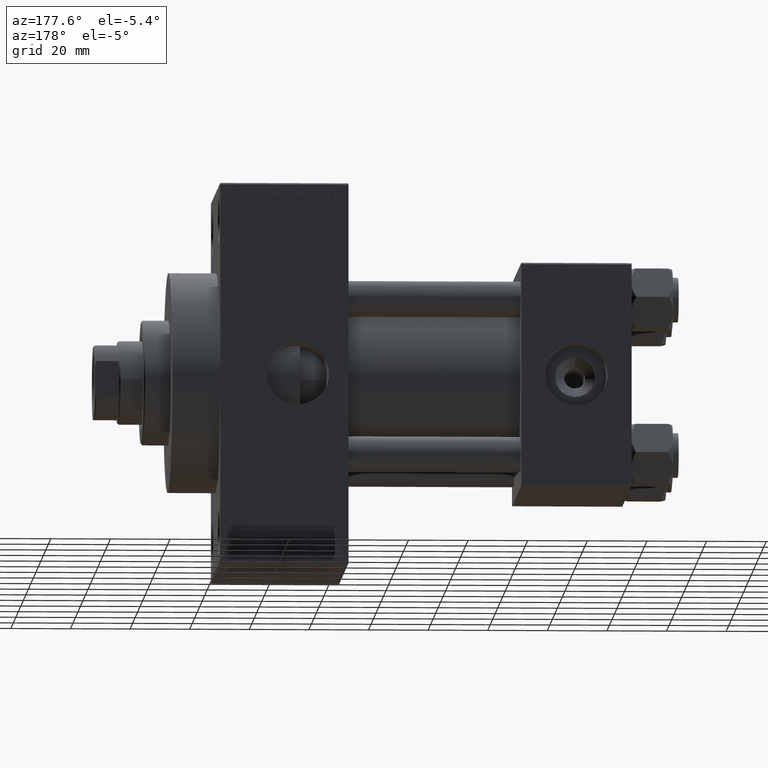
[diagram: clean part render]
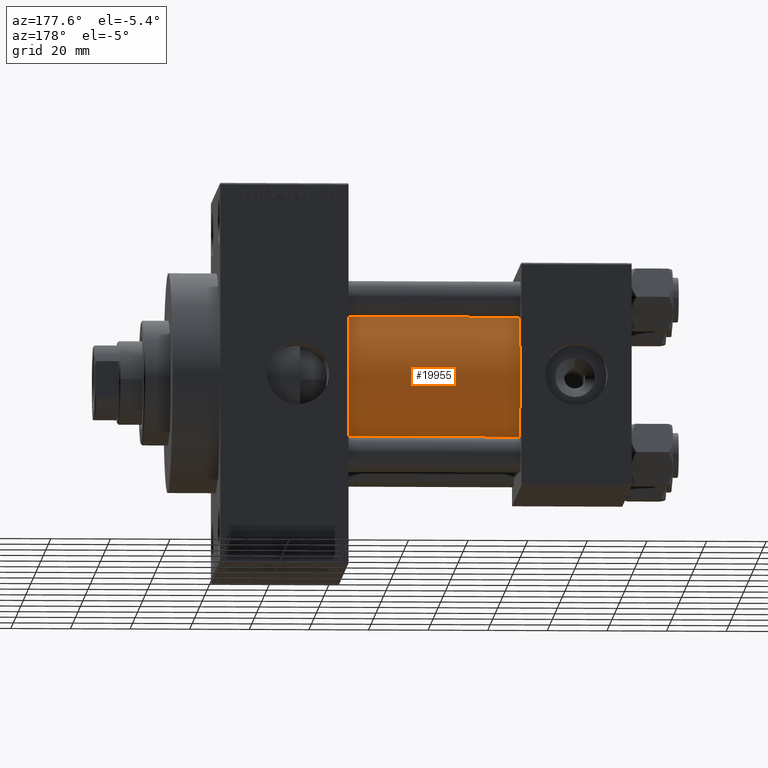
[diagram: same view with one face highlighted and labeled with its STEP entity id]
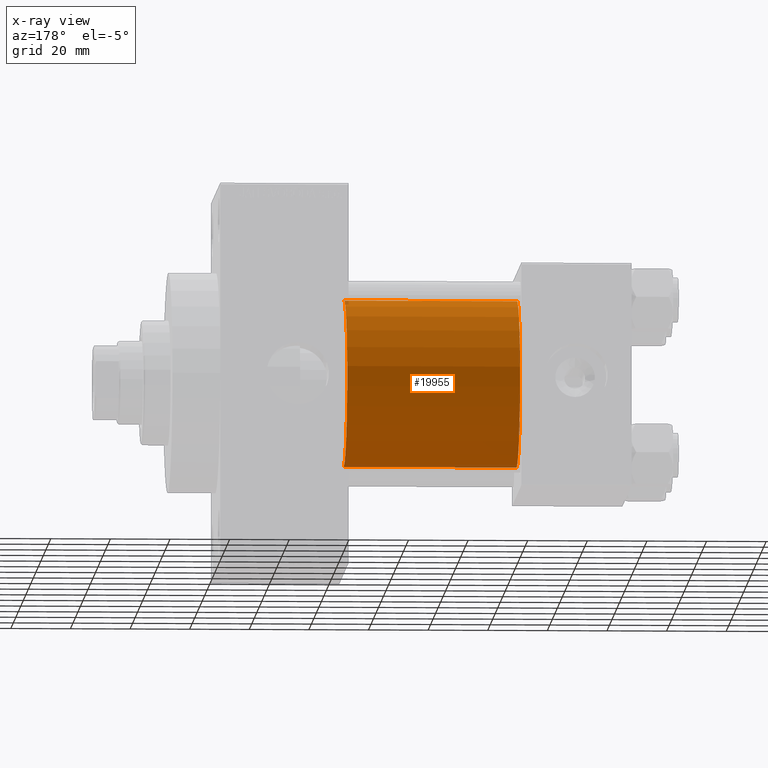
[diagram: x-ray of the same camera — body ghosted, the highlighted face saturated]
A machine part, auxiliary view. The second image highlights one B-rep face of the part: STEP entity #19955.
The next image is the same camera in x-ray: the body ghosted, the highlighted face saturated — about 2% of this face is hidden behind the body in this view.
In plain terms, the highlighted cylindrical surface (partial cylindrical patch) has radius 28 mm, axis along (-1, -0, -0).
Its self-contained STEP definition (entity closure, byte-faithful):
#1358 = CARTESIAN_POINT ( 'NONE',  ( 95.00000000000000000, 8.269258236473776482E-16, -28.00000000000000000 ) ) ;
#5618 = CARTESIAN_POINT ( 'NONE',  ( 95.00000000000000000, -2.602085213965210642E-15, 28.00000000000000000 ) ) ;
#7671 = LINE ( 'NONE', #22226, #41575 ) ;
#8021 = CARTESIAN_POINT ( 'NONE',  ( 37.00000000000000000, -2.602085213965210642E-15, 28.00000000000000000 ) ) ;
#10570 = CARTESIAN_POINT ( 'NONE',  ( 37.00000000000000000, 8.269258236473776482E-16, -28.00000000000000000 ) ) ;
#11229 = CARTESIAN_POINT ( 'NONE',  ( 37.00000000000000000, -2.602085213965210642E-15, 0.000000000000000000 ) ) ;
#11488 = DIRECTION ( 'NONE',  ( -1.000000000000000000, -0.000000000000000000, -0.000000000000000000 ) ) ;
#12089 = AXIS2_PLACEMENT_3D ( 'NONE', #11229, #32949, #18626 ) ;
#12783 = DIRECTION ( 'NONE',  ( 1.000000000000000000, 0.000000000000000000, 0.000000000000000000 ) ) ;
#12816 = VERTEX_POINT ( 'NONE', #10570 ) ;
#14418 = CYLINDRICAL_SURFACE ( 'NONE', #32437, 28.00000000000000000 ) ;
#16811 = ORIENTED_EDGE ( 'NONE', *, *, #27893, .T. ) ;
#18445 = EDGE_CURVE ( 'NONE', #37528, #12816, #7671, .T. ) ;
#18626 = DIRECTION ( 'NONE',  ( 0.000000000000000000, 0.000000000000000000, 1.000000000000000000 ) ) ;
#19955 = ADVANCED_FACE ( 'NONE', ( #23178 ), #14418, .T. ) ;
#21583 = DIRECTION ( 'NONE',  ( -1.000000000000000000, -0.000000000000000000, -0.000000000000000000 ) ) ;
#21823 = CARTESIAN_POINT ( 'NONE',  ( 95.00000000000000000, -2.602085213965210642E-15, 0.000000000000000000 ) ) ;
#22226 = CARTESIAN_POINT ( 'NONE',  ( 95.00000000000000000, 8.269258236473776482E-16, -28.00000000000000000 ) ) ;
#23178 = FACE_OUTER_BOUND ( 'NONE', #41562, .T. ) ;
#23751 = DIRECTION ( 'NONE',  ( -1.000000000000000000, -0.000000000000000000, -0.000000000000000000 ) ) ;
#24209 = LINE ( 'NONE', #5618, #41121 ) ;
#25213 = CIRCLE ( 'NONE', #31350, 28.00000000000000000 ) ;
#26778 = DIRECTION ( 'NONE',  ( 0.000000000000000000, 0.000000000000000000, 1.000000000000000000 ) ) ;
#27327 = ORIENTED_EDGE ( 'NONE', *, *, #18445, .T. ) ;
#27350 = DIRECTION ( 'NONE',  ( 0.000000000000000000, 0.000000000000000000, -1.000000000000000000 ) ) ;
#27893 = EDGE_CURVE ( 'NONE', #12816, #35697, #31150, .T. ) ;
#31150 = CIRCLE ( 'NONE', #12089, 28.00000000000000000 ) ;
#31233 = EDGE_CURVE ( 'NONE', #40782, #35697, #24209, .T. ) ;
#31350 = AXIS2_PLACEMENT_3D ( 'NONE', #45522, #12783, #27350 ) ;
#32437 = AXIS2_PLACEMENT_3D ( 'NONE', #21823, #21583, #26778 ) ;
#32598 = CARTESIAN_POINT ( 'NONE',  ( 95.00000000000000000, -2.602085213965210642E-15, 28.00000000000000000 ) ) ;
#32949 = DIRECTION ( 'NONE',  ( 1.000000000000000000, -0.000000000000000000, 0.000000000000000000 ) ) ;
#34242 = ORIENTED_EDGE ( 'NONE', *, *, #31233, .F. ) ;
#35697 = VERTEX_POINT ( 'NONE', #8021 ) ;
#36110 = ORIENTED_EDGE ( 'NONE', *, *, #36683, .F. ) ;
#36683 = EDGE_CURVE ( 'NONE', #37528, #40782, #25213, .T. ) ;
#37528 = VERTEX_POINT ( 'NONE', #1358 ) ;
#40782 = VERTEX_POINT ( 'NONE', #32598 ) ;
#41121 = VECTOR ( 'NONE', #23751, 1000.000000000000000 ) ;
#41562 = EDGE_LOOP ( 'NONE', ( #36110, #27327, #16811, #34242 ) ) ;
#41575 = VECTOR ( 'NONE', #11488, 1000.000000000000000 ) ;
#45522 = CARTESIAN_POINT ( 'NONE',  ( 95.00000000000000000, -2.602085213965210642E-15, 0.000000000000000000 ) ) ;